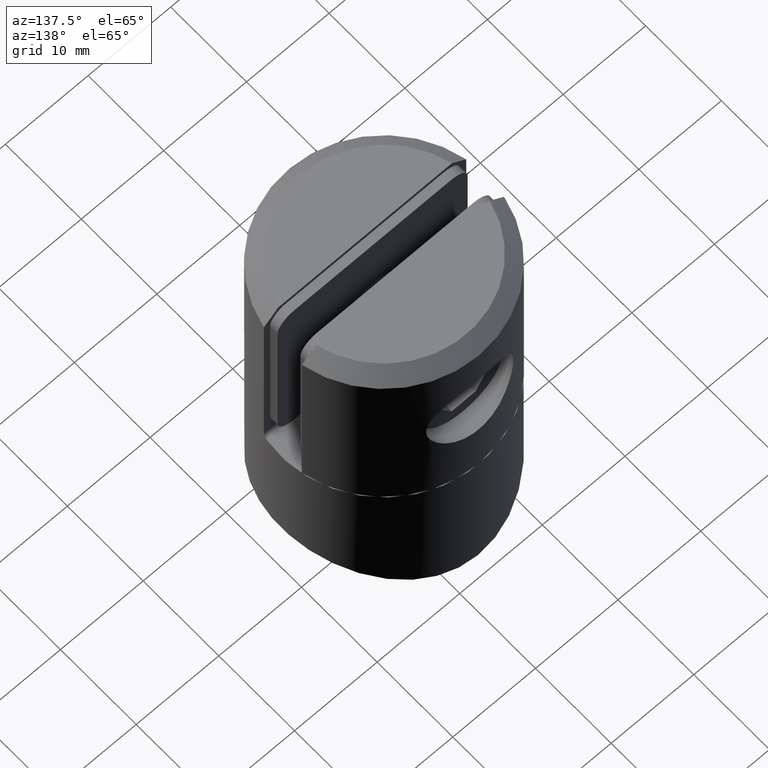
[diagram: clean part render]
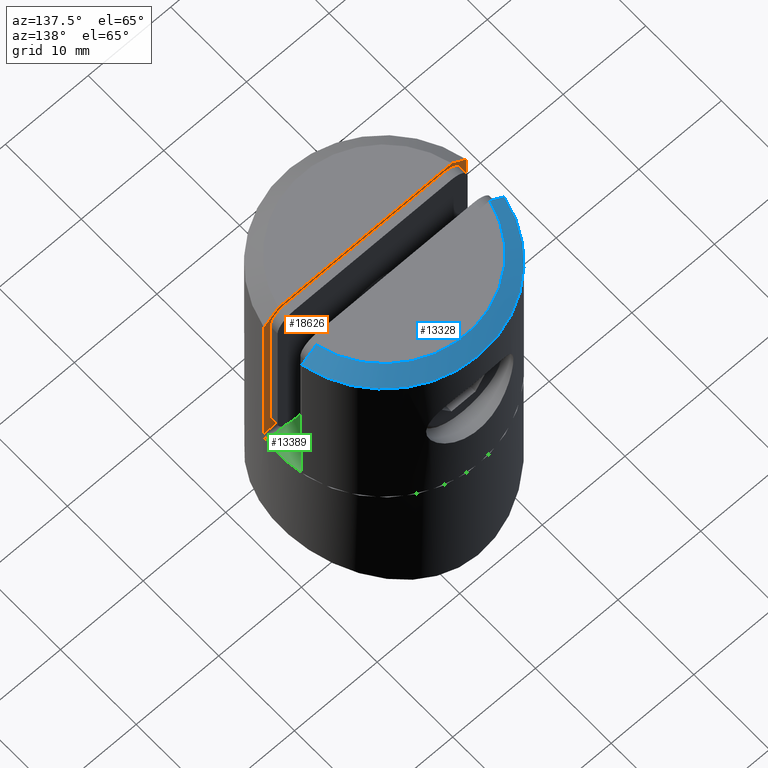
[diagram: same view with three faces highlighted in distinct colors, each labeled with its STEP entity id]
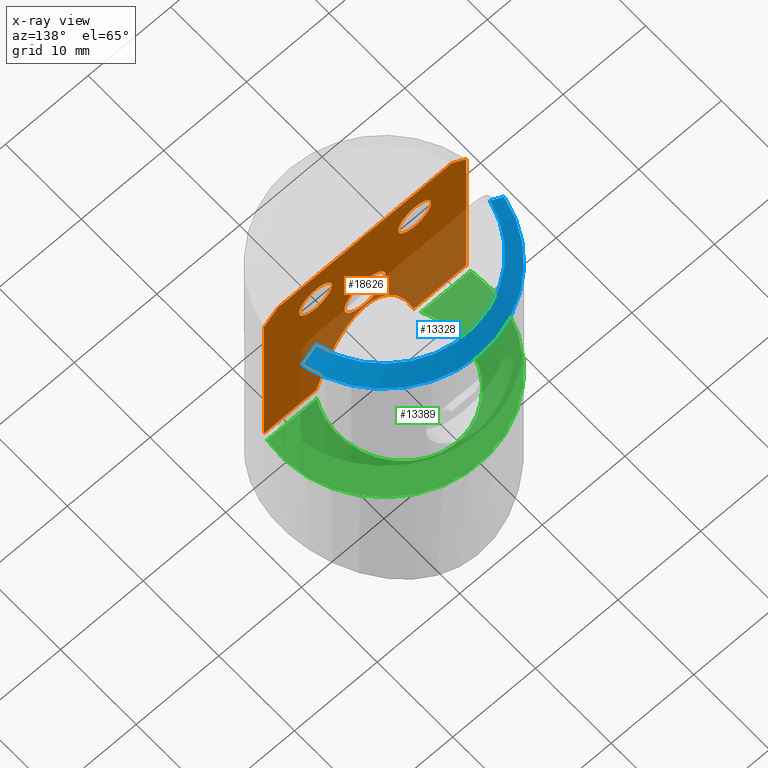
[diagram: x-ray of the same camera — body ghosted, the three highlighted faces saturated]
A machine part, auxiliary view with three faces highlighted in distinct colors.
The next image is the same camera in x-ray (body ghosted, the three faces saturated) — at least one of them is partly hidden behind the body in this view.
Their STEP definitions:

[orange] entity #18626 — the highlighted planar face has unit normal (0, -1, 0).
#299 = VERTEX_POINT ( 'NONE', #11977 ) ;
#622 = CARTESIAN_POINT ( 'NONE',  ( -10.50666455160723167, -2.500000000000003997, 39.59999999999999432 ) ) ;
#701 = CARTESIAN_POINT ( 'NONE',  ( -11.66812187511647636, -2.500000000000003109, 38.46762205974326321 ) ) ;
#791 = VECTOR ( 'NONE', #7309, 1000.000000000000000 ) ;
#828 = EDGE_LOOP ( 'NONE', ( #14305 ) ) ;
#1105 = DIRECTION ( 'NONE',  ( 0.000000000000000000, 1.000000000000000000, 0.000000000000000000 ) ) ;
#1211 = CARTESIAN_POINT ( 'NONE',  ( 12.24744871391589207, -2.500000000000003997, 37.89999999999999858 ) ) ;
#1256 = CARTESIAN_POINT ( 'NONE',  ( 6.000000000000000000, -2.500000000000003997, 36.79999999999999716 ) ) ;
#1892 = VECTOR ( 'NONE', #12768, 1000.000000000000000 ) ;
#1913 = AXIS2_PLACEMENT_3D ( 'NONE', #16683, #14981, #4407 ) ;
#3503 = VERTEX_POINT ( 'NONE', #14494 ) ;
#3565 = EDGE_CURVE ( 'NONE', #3503, #15305, #17228, .T. ) ;
#3630 = ORIENTED_EDGE ( 'NONE', *, *, #16730, .T. ) ;
#3801 =( BOUNDED_CURVE ( )  B_SPLINE_CURVE ( 3, ( #17141, #20928, #11835, #6537 ),
 .UNSPECIFIED., .F., .F. ) 
 B_SPLINE_CURVE_WITH_KNOTS ( ( 4, 4 ),
 ( 5.345268941596490464, 7.221101672762682000 ),
 .UNSPECIFIED. ) 
 CURVE ( )  GEOMETRIC_REPRESENTATION_ITEM ( )  RATIONAL_B_SPLINE_CURVE ( ( 1.000000000000000000, 0.7276462662491731681, 0.7276462662491731681, 1.000000000000000000 ) ) 
 REPRESENTATION_ITEM ( '' )  );
#4093 = CARTESIAN_POINT ( 'NONE',  ( -12.24744871391589207, -2.500000000000003997, 39.59999999999999432 ) ) ;
#4407 = DIRECTION ( 'NONE',  ( 0.000000000000000000, 0.000000000000000000, 1.000000000000000000 ) ) ;
#4541 = EDGE_CURVE ( 'NONE', #22954, #5866, #7756, .T. ) ;
#4551 = AXIS2_PLACEMENT_3D ( 'NONE', #6351, #1105, #4688 ) ;
#4688 = DIRECTION ( 'NONE',  ( 0.000000000000000000, 0.000000000000000000, 1.000000000000000000 ) ) ;
#4929 = VERTEX_POINT ( 'NONE', #15115 ) ;
#5070 = DIRECTION ( 'NONE',  ( -1.000000000000000000, 0.000000000000000000, 0.000000000000000000 ) ) ;
#5681 = B_SPLINE_CURVE_WITH_KNOTS ( 'NONE', 3,
 ( #16985, #11912, #22618, #1211 ),
 .UNSPECIFIED., .F., .F.,
 ( 4, 4 ),
 ( 0.000000000000000000, 0.002433172722957547499 ),
 .UNSPECIFIED. ) ;
#5727 = CARTESIAN_POINT ( 'NONE',  ( -12.24744871391589207, -2.500000000000003997, 37.89999999999999858 ) ) ;
#5859 = VECTOR ( 'NONE', #10445, 1000.000000000000000 ) ;
#5866 = VERTEX_POINT ( 'NONE', #21423 ) ;
#5883 = CARTESIAN_POINT ( 'NONE',  ( -11.08800938267508762, -2.500000000000003997, 39.03444489547771212 ) ) ;
#6351 = CARTESIAN_POINT ( 'NONE',  ( 6.000000000000000000, -2.500000000000003997, 34.79999999999999716 ) ) ;
#6415 = VERTEX_POINT ( 'NONE', #11721 ) ;
#6439 = ORIENTED_EDGE ( 'NONE', *, *, #3565, .F. ) ;
#6489 = EDGE_CURVE ( 'NONE', #6415, #6415, #15062, .T. ) ;
#6537 = CARTESIAN_POINT ( 'NONE',  ( -5.886190353226848693, -2.500000000000003997, 15.50000000000000000 ) ) ;
#7267 = ORIENTED_EDGE ( 'NONE', *, *, #18273, .T. ) ;
#7309 = DIRECTION ( 'NONE',  ( -1.000000000000000000, 0.000000000000000000, 0.000000000000000000 ) ) ;
#7527 = EDGE_CURVE ( 'NONE', #11683, #11683, #11446, .T. ) ;
#7587 = DIRECTION ( 'NONE',  ( 0.000000000000000000, -1.000000000000000000, 0.000000000000000000 ) ) ;
#7756 = LINE ( 'NONE', #4093, #1892 ) ;
#8572 = DIRECTION ( 'NONE',  ( -0.000000000000000000, 1.000000000000000000, -0.000000000000000000 ) ) ;
#8721 = ORIENTED_EDGE ( 'NONE', *, *, #12916, .T. ) ;
#9018 = FACE_BOUND ( 'NONE', #14899, .T. ) ;
#9112 = VERTEX_POINT ( 'NONE', #1256 ) ;
#9240 = CARTESIAN_POINT ( 'NONE',  ( 12.24744871391589207, -2.500000000000003997, 15.50000000000000000 ) ) ;
#9349 = DIRECTION ( 'NONE',  ( 0.000000000000000000, -0.000000000000000000, -1.000000000000000000 ) ) ;
#9395 = CARTESIAN_POINT ( 'NONE',  ( 12.24744871391589207, -2.500000000000003997, 39.59999999999999432 ) ) ;
#9420 = CARTESIAN_POINT ( 'NONE',  ( -12.24744871391589207, -2.500000000000003997, 37.89999999999999858 ) ) ;
#10204 = CARTESIAN_POINT ( 'NONE',  ( 0.000000000000000000, -2.500000000000003997, 27.59999999999999432 ) ) ;
#10287 = DIRECTION ( 'NONE',  ( 0.000000000000000000, 0.000000000000000000, 1.000000000000000000 ) ) ;
#10445 = DIRECTION ( 'NONE',  ( -1.000000000000000000, 0.000000000000000000, 0.000000000000000000 ) ) ;
#10499 = CARTESIAN_POINT ( 'NONE',  ( 12.24744871391589207, -2.500000000000003997, 37.89999999999999858 ) ) ;
#10649 = EDGE_LOOP ( 'NONE', ( #8721, #22355, #18111, #20602, #6439, #7267, #18910, #3630 ) ) ;
#11446 = CIRCLE ( 'NONE', #18269, 2.499999999999998668 ) ;
#11496 = VECTOR ( 'NONE', #14920, 1000.000000000000000 ) ;
#11551 = FACE_BOUND ( 'NONE', #13715, .T. ) ;
#11683 = VERTEX_POINT ( 'NONE', #16955 ) ;
#11721 = CARTESIAN_POINT ( 'NONE',  ( -6.000000000000000000, -2.500000000000003997, 36.79999999999999716 ) ) ;
#11835 = CARTESIAN_POINT ( 'NONE',  ( -2.696452303932709071, -2.500000000000003553, 28.85648753586291804 ) ) ;
#11912 = CARTESIAN_POINT ( 'NONE',  ( 11.08800938267508585, -2.500000000000003997, 39.03444489547771212 ) ) ;
#11977 = CARTESIAN_POINT ( 'NONE',  ( -5.886190353226848693, -2.500000000000003997, 15.50000000000000000 ) ) ;
#12322 = AXIS2_PLACEMENT_3D ( 'NONE', #20103, #7587, #9349 ) ;
#12749 = CARTESIAN_POINT ( 'NONE',  ( 12.24744871391589207, -2.500000000000003997, 39.59999999999999432 ) ) ;
#12768 = DIRECTION ( 'NONE',  ( -0.000000000000000000, -0.000000000000000000, -1.000000000000000000 ) ) ;
#12916 = EDGE_CURVE ( 'NONE', #4929, #299, #3801, .T. ) ;
#13049 = ORIENTED_EDGE ( 'NONE', *, *, #19624, .F. ) ;
#13686 = ORIENTED_EDGE ( 'NONE', *, *, #6489, .F. ) ;
#13715 = EDGE_LOOP ( 'NONE', ( #13049 ) ) ;
#14238 = EDGE_CURVE ( 'NONE', #19684, #17674, #17316, .T. ) ;
#14305 = ORIENTED_EDGE ( 'NONE', *, *, #7527, .F. ) ;
#14481 = PLANE ( 'NONE',  #12322 ) ;
#14494 = CARTESIAN_POINT ( 'NONE',  ( 10.50666455160723878, -2.500000000000003997, 39.59999999999999432 ) ) ;
#14899 = EDGE_LOOP ( 'NONE', ( #13686 ) ) ;
#14920 = DIRECTION ( 'NONE',  ( -0.000000000000000000, -0.000000000000000000, -1.000000000000000000 ) ) ;
#14981 = DIRECTION ( 'NONE',  ( 0.000000000000000000, 1.000000000000000000, 0.000000000000000000 ) ) ;
#15062 = CIRCLE ( 'NONE', #1913, 2.000000000000001776 ) ;
#15115 = CARTESIAN_POINT ( 'NONE',  ( 5.886190353226847805, -2.500000000000003997, 15.50000000000000000 ) ) ;
#15288 = LINE ( 'NONE', #22818, #5859 ) ;
#15305 = VERTEX_POINT ( 'NONE', #16405 ) ;
#15646 = EDGE_CURVE ( 'NONE', #299, #5866, #15288, .T. ) ;
#15696 = CARTESIAN_POINT ( 'NONE',  ( 6.002203970564250035, -2.500000000000003997, 15.50000000000000000 ) ) ;
#16225 = FACE_BOUND ( 'NONE', #828, .T. ) ;
#16405 = CARTESIAN_POINT ( 'NONE',  ( -10.50666455160723167, -2.500000000000003997, 39.59999999999999432 ) ) ;
#16683 = CARTESIAN_POINT ( 'NONE',  ( -6.000000000000000000, -2.500000000000003997, 34.79999999999999716 ) ) ;
#16730 = EDGE_CURVE ( 'NONE', #17674, #4929, #16854, .T. ) ;
#16854 = LINE ( 'NONE', #15696, #19123 ) ;
#16955 = CARTESIAN_POINT ( 'NONE',  ( 0.000000000000000000, -2.500000000000003997, 30.09999999999999432 ) ) ;
#16985 = CARTESIAN_POINT ( 'NONE',  ( 10.50666455160723878, -2.500000000000003997, 39.59999999999999432 ) ) ;
#17141 = CARTESIAN_POINT ( 'NONE',  ( 5.886190353226847805, -2.500000000000003997, 15.50000000000000000 ) ) ;
#17228 = LINE ( 'NONE', #12749, #791 ) ;
#17316 = LINE ( 'NONE', #9395, #11496 ) ;
#17674 = VERTEX_POINT ( 'NONE', #9240 ) ;
#18111 = ORIENTED_EDGE ( 'NONE', *, *, #4541, .F. ) ;
#18135 = CIRCLE ( 'NONE', #4551, 2.000000000000001776 ) ;
#18269 = AXIS2_PLACEMENT_3D ( 'NONE', #10204, #8572, #10287 ) ;
#18273 = EDGE_CURVE ( 'NONE', #3503, #19684, #5681, .T. ) ;
#18626 = ADVANCED_FACE ( 'NONE', ( #16225, #11551, #9018, #21292 ), #14481, .F. ) ;
#18910 = ORIENTED_EDGE ( 'NONE', *, *, #14238, .T. ) ;
#19123 = VECTOR ( 'NONE', #5070, 1000.000000000000000 ) ;
#19624 = EDGE_CURVE ( 'NONE', #9112, #9112, #18135, .T. ) ;
#19684 = VERTEX_POINT ( 'NONE', #10499 ) ;
#20103 = CARTESIAN_POINT ( 'NONE',  ( 12.24744871391589207, -2.500000000000003997, 39.59999999999999432 ) ) ;
#20602 = ORIENTED_EDGE ( 'NONE', *, *, #23066, .T. ) ;
#20928 = CARTESIAN_POINT ( 'NONE',  ( 2.696452303932710848, -2.500000000000003553, 28.85648753586292514 ) ) ;
#21292 = FACE_OUTER_BOUND ( 'NONE', #10649, .T. ) ;
#21423 = CARTESIAN_POINT ( 'NONE',  ( -12.24744871391589207, -2.500000000000003997, 15.50000000000000000 ) ) ;
#22170 = B_SPLINE_CURVE_WITH_KNOTS ( 'NONE', 3,
 ( #9420, #701, #5883, #622 ),
 .UNSPECIFIED., .F., .F.,
 ( 4, 4 ),
 ( 1.734723475976807094E-18, 0.002433172722957552270 ),
 .UNSPECIFIED. ) ;
#22355 = ORIENTED_EDGE ( 'NONE', *, *, #15646, .T. ) ;
#22618 = CARTESIAN_POINT ( 'NONE',  ( 11.66812187511647636, -2.500000000000003997, 38.46762205974326321 ) ) ;
#22818 = CARTESIAN_POINT ( 'NONE',  ( -12.24744871391588497, -2.500000000000003997, 15.50000000000000000 ) ) ;
#22954 = VERTEX_POINT ( 'NONE', #5727 ) ;
#23066 = EDGE_CURVE ( 'NONE', #22954, #15305, #22170, .T. ) ;

[blue] entity #13328 — the highlighted conical surface has half-angle 45 deg.
#287 = DIRECTION ( 'NONE',  ( 0.000000000000000000, 0.000000000000000000, 1.000000000000000000 ) ) ;
#439 = B_SPLINE_CURVE_WITH_KNOTS ( 'NONE', 3,
 ( #18392, #4552, #17371, #21656 ),
 .UNSPECIFIED., .F., .F.,
 ( 4, 4 ),
 ( 0.000000000000000000, 0.002433172722957555739 ),
 .UNSPECIFIED. ) ;
#883 = CARTESIAN_POINT ( 'NONE',  ( -10.50666455160723167, 2.500000000000000444, 24.50000000000000000 ) ) ;
#1088 = DIRECTION ( 'NONE',  ( 0.000000000000000000, 0.000000000000000000, -1.000000000000000000 ) ) ;
#3521 = EDGE_CURVE ( 'NONE', #17915, #21497, #439, .T. ) ;
#3681 = CARTESIAN_POINT ( 'NONE',  ( 10.50666455160723345, 2.500000000000000444, 24.50000000000000000 ) ) ;
#4229 = CARTESIAN_POINT ( 'NONE',  ( -11.66812187511647458, 2.500000000000000444, 23.36762205974326534 ) ) ;
#4309 = EDGE_CURVE ( 'NONE', #9541, #17915, #12524, .T. ) ;
#4552 = CARTESIAN_POINT ( 'NONE',  ( 11.66812187511647458, 2.500000000000000444, 23.36762205974326534 ) ) ;
#5313 = AXIS2_PLACEMENT_3D ( 'NONE', #7340, #287, #23122 ) ;
#5841 = CONICAL_SURFACE ( 'NONE', #16057, 10.79999999999999893, 0.7853981633974468357 ) ;
#6473 = ORIENTED_EDGE ( 'NONE', *, *, #20693, .F. ) ;
#6638 = CARTESIAN_POINT ( 'NONE',  ( -10.50666455160723167, 2.500000000000000444, 24.50000000000000000 ) ) ;
#6939 = DIRECTION ( 'NONE',  ( 1.000000000000000000, 0.000000000000000000, 0.000000000000000000 ) ) ;
#7289 = ORIENTED_EDGE ( 'NONE', *, *, #4309, .F. ) ;
#7340 = CARTESIAN_POINT ( 'NONE',  ( 0.000000000000000000, 0.000000000000000000, 24.50000000000000000 ) ) ;
#7688 = EDGE_LOOP ( 'NONE', ( #16958, #7289, #12412, #6473 ) ) ;
#7744 = CARTESIAN_POINT ( 'NONE',  ( -12.24744871391589029, 2.500000000000000444, 22.79999999999999361 ) ) ;
#7870 = DIRECTION ( 'NONE',  ( -1.000000000000000000, 0.000000000000000000, 0.000000000000000000 ) ) ;
#8037 = AXIS2_PLACEMENT_3D ( 'NONE', #11782, #1088, #6939 ) ;
#9541 = VERTEX_POINT ( 'NONE', #15746 ) ;
#10854 = VERTEX_POINT ( 'NONE', #6638 ) ;
#11617 = DIRECTION ( 'NONE',  ( 0.000000000000000000, 0.000000000000000000, -1.000000000000000000 ) ) ;
#11782 = CARTESIAN_POINT ( 'NONE',  ( 0.000000000000000000, 0.000000000000000000, 22.79999999999999361 ) ) ;
#11989 = EDGE_CURVE ( 'NONE', #10854, #9541, #17983, .T. ) ;
#12412 = ORIENTED_EDGE ( 'NONE', *, *, #11989, .F. ) ;
#12524 = CIRCLE ( 'NONE', #8037, 12.50000000000000000 ) ;
#13328 = ADVANCED_FACE ( 'NONE', ( #17774 ), #5841, .T. ) ;
#13487 = CIRCLE ( 'NONE', #5313, 10.79999999999999893 ) ;
#14878 = CARTESIAN_POINT ( 'NONE',  ( -11.08800938267508052, 2.500000000000000888, 23.93444489547771425 ) ) ;
#15746 = CARTESIAN_POINT ( 'NONE',  ( -12.24744871391589029, 2.500000000000000444, 22.79999999999999361 ) ) ;
#16055 = CARTESIAN_POINT ( 'NONE',  ( 12.24744871391589029, 2.500000000000000444, 22.79999999999999361 ) ) ;
#16057 = AXIS2_PLACEMENT_3D ( 'NONE', #20402, #11617, #7870 ) ;
#16958 = ORIENTED_EDGE ( 'NONE', *, *, #3521, .F. ) ;
#17371 = CARTESIAN_POINT ( 'NONE',  ( 11.08800938267508052, 2.500000000000000444, 23.93444489547771425 ) ) ;
#17774 = FACE_OUTER_BOUND ( 'NONE', #7688, .T. ) ;
#17915 = VERTEX_POINT ( 'NONE', #16055 ) ;
#17983 = B_SPLINE_CURVE_WITH_KNOTS ( 'NONE', 3,
 ( #883, #14878, #4229, #7744 ),
 .UNSPECIFIED., .F., .F.,
 ( 4, 4 ),
 ( 0.000000000000000000, 0.002433172722957555739 ),
 .UNSPECIFIED. ) ;
#18392 = CARTESIAN_POINT ( 'NONE',  ( 12.24744871391589029, 2.500000000000000444, 22.79999999999999361 ) ) ;
#20402 = CARTESIAN_POINT ( 'NONE',  ( 0.000000000000000000, 0.000000000000000000, 24.50000000000000000 ) ) ;
#20693 = EDGE_CURVE ( 'NONE', #21497, #10854, #13487, .T. ) ;
#21497 = VERTEX_POINT ( 'NONE', #3681 ) ;
#21656 = CARTESIAN_POINT ( 'NONE',  ( 10.50666455160723345, 2.500000000000000444, 24.50000000000000000 ) ) ;
#23122 = DIRECTION ( 'NONE',  ( 1.000000000000000000, 0.000000000000000000, 0.000000000000000000 ) ) ;

[green] entity #13389 — the highlighted planar face has unit normal (0, 0, -1).
#1192 = DIRECTION ( 'NONE',  ( -0.000000000000000000, -8.839393595184489370E-19, 1.000000000000000000 ) ) ;
#1263 = DIRECTION ( 'NONE',  ( 0.000000000000000000, -1.000000000000000000, 0.000000000000000000 ) ) ;
#1333 = AXIS2_PLACEMENT_3D ( 'NONE', #11505, #8003, #2467 ) ;
#2467 = DIRECTION ( 'NONE',  ( 0.000000000000000000, 1.000000000000000000, 8.839393595184489370E-19 ) ) ;
#2487 = VERTEX_POINT ( 'NONE', #6912 ) ;
#2510 = CARTESIAN_POINT ( 'NONE',  ( -6.303294893186587977, -2.000000000000003997, 15.00000000000000000 ) ) ;
#2792 = ORIENTED_EDGE ( 'NONE', *, *, #12266, .T. ) ;
#3035 = CARTESIAN_POINT ( 'NONE',  ( -6.303294893186587977, -2.000000000000003997, 15.00000000000000000 ) ) ;
#3798 = CARTESIAN_POINT ( 'NONE',  ( 6.303294893186587089, -2.000000000000003997, 15.00000000000000000 ) ) ;
#4196 = ORIENTED_EDGE ( 'NONE', *, *, #22174, .T. ) ;
#4594 = CARTESIAN_POINT ( 'NONE',  ( 9.503912748000114874, 3.794633672133968183, 15.00000000000000000 ) ) ;
#5068 = EDGE_CURVE ( 'NONE', #7191, #2487, #5250, .T. ) ;
#5250 = CIRCLE ( 'NONE', #9642, 12.50000000000000178 ) ;
#5877 = CARTESIAN_POINT ( 'NONE',  ( 12.33896267925306667, -2.000000000000003997, 15.00000000000000000 ) ) ;
#6912 = CARTESIAN_POINT ( 'NONE',  ( -12.33896267925306667, -2.000000000000003997, 15.00000000000000000 ) ) ;
#7099 = ORIENTED_EDGE ( 'NONE', *, *, #5068, .T. ) ;
#7191 = VERTEX_POINT ( 'NONE', #5877 ) ;
#8003 = DIRECTION ( 'NONE',  ( 0.000000000000000000, 8.839393595184489370E-19, -1.000000000000000000 ) ) ;
#9642 = AXIS2_PLACEMENT_3D ( 'NONE', #15417, #1192, #1263 ) ;
#9690 = PLANE ( 'NONE',  #1333 ) ;
#10194 = CARTESIAN_POINT ( 'NONE',  ( -9.503912748000114874, 3.794633672133965518, 15.00000000000000000 ) ) ;
#10369 = CARTESIAN_POINT ( 'NONE',  ( -6.002203970564241153, -2.000000000000003997, 15.00000000000000000 ) ) ;
#11505 = CARTESIAN_POINT ( 'NONE',  ( 0.000000000000000000, -4.883429945661786931E-36, 15.00000000000000000 ) ) ;
#12266 = EDGE_CURVE ( 'NONE', #21783, #22089, #20378, .T. ) ;
#12859 = CARTESIAN_POINT ( 'NONE',  ( 12.24744871391589207, -2.000000000000003997, 15.00000000000000000 ) ) ;
#12980 = EDGE_LOOP ( 'NONE', ( #7099, #15272, #2792, #4196 ) ) ;
#13389 = ADVANCED_FACE ( 'NONE', ( #16930 ), #9690, .F. ) ;
#13775 = CARTESIAN_POINT ( 'NONE',  ( 6.345287225343620996, 9.614984130205092683, 15.00000000000000000 ) ) ;
#14022 = DIRECTION ( 'NONE',  ( 1.000000000000000000, -0.000000000000000000, -0.000000000000000000 ) ) ;
#14798 = VECTOR ( 'NONE', #14022, 1000.000000000000000 ) ;
#15272 = ORIENTED_EDGE ( 'NONE', *, *, #18944, .T. ) ;
#15417 = CARTESIAN_POINT ( 'NONE',  ( 0.000000000000000000, -9.766859891323573861E-36, 15.00000000000000000 ) ) ;
#15429 = LINE ( 'NONE', #12859, #21036 ) ;
#16929 = DIRECTION ( 'NONE',  ( 1.000000000000000000, -0.000000000000000000, -0.000000000000000000 ) ) ;
#16930 = FACE_OUTER_BOUND ( 'NONE', #12980, .T. ) ;
#18904 = CARTESIAN_POINT ( 'NONE',  ( 0.000000000000000000, 9.614984130205092683, 15.00000000000000000 ) ) ;
#18944 = EDGE_CURVE ( 'NONE', #2487, #21783, #22349, .T. ) ;
#20378 =( BOUNDED_CURVE ( )  B_SPLINE_CURVE ( 3, ( #3035, #10194, #22644, #18904, #13775, #4594, #20718 ),
 .UNSPECIFIED., .F., .F. ) 
 B_SPLINE_CURVE_WITH_KNOTS ( ( 4, 3, 4 ),
 ( 4.183691992339124255, 6.283185307179586232, 8.382678622020048209 ),
 .UNSPECIFIED. ) 
 CURVE ( )  GEOMETRIC_REPRESENTATION_ITEM ( )  RATIONAL_B_SPLINE_CURVE ( ( 1.000000000000000000, 0.6651938581062881717, 0.6651938581062881717, 1.000000000000000000, 0.6651938581062881717, 0.6651938581062881717, 1.000000000000000000 ) ) 
 REPRESENTATION_ITEM ( '' )  );
#20718 = CARTESIAN_POINT ( 'NONE',  ( 6.303294893186587089, -2.000000000000003997, 15.00000000000000000 ) ) ;
#21036 = VECTOR ( 'NONE', #16929, 1000.000000000000000 ) ;
#21783 = VERTEX_POINT ( 'NONE', #2510 ) ;
#22089 = VERTEX_POINT ( 'NONE', #3798 ) ;
#22174 = EDGE_CURVE ( 'NONE', #22089, #7191, #15429, .T. ) ;
#22349 = LINE ( 'NONE', #10369, #14798 ) ;
#22644 = CARTESIAN_POINT ( 'NONE',  ( -6.345287225343620996, 9.614984130205092683, 15.00000000000000000 ) ) ;